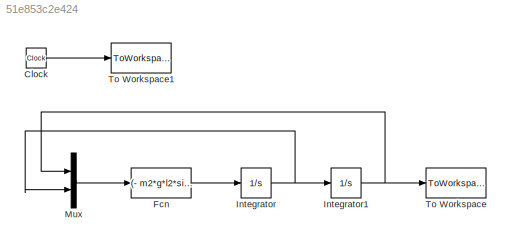
MODEL slx_51e853c2e424
KIND model
BLOCK [Clock] Clock
BLOCK [Fcn] Fcn
  Expr = (- m2*g*l2*sin(u(1)) - c2*u(2))/J2b
BLOCK [Integrator] Integrator
  Ports = [1, 1]
BLOCK [Integrator] Integrator1
  InitialCondition = phi20
  Ports = [1, 1]
BLOCK [Mux] Mux
  DisplayOption = bar
  Inputs = 2
  Ports = [2, 1]
BLOCK [ToWorkspace] To Workspace
  MaxDataPoints = inf
  Ports = [1]
  SampleTime = -1
  VariableName = phi2_sim
BLOCK [ToWorkspace] To Workspace1
  MaxDataPoints = inf
  Ports = [1]
  SampleTime = -1
  VariableName = t_sim
LINE Clock:1 -> To Workspace1:1
LINE Fcn:1 -> Integrator:1
NET Integrator1:1 -> Mux:1, To Workspace:1
NET Integrator:1 -> Integrator1:1, Mux:2
LINE Mux:1 -> Fcn:1
note: NET lines group one-source signal fan-out (src -> all destinations, sorted); 1:1 wires keep LINE
